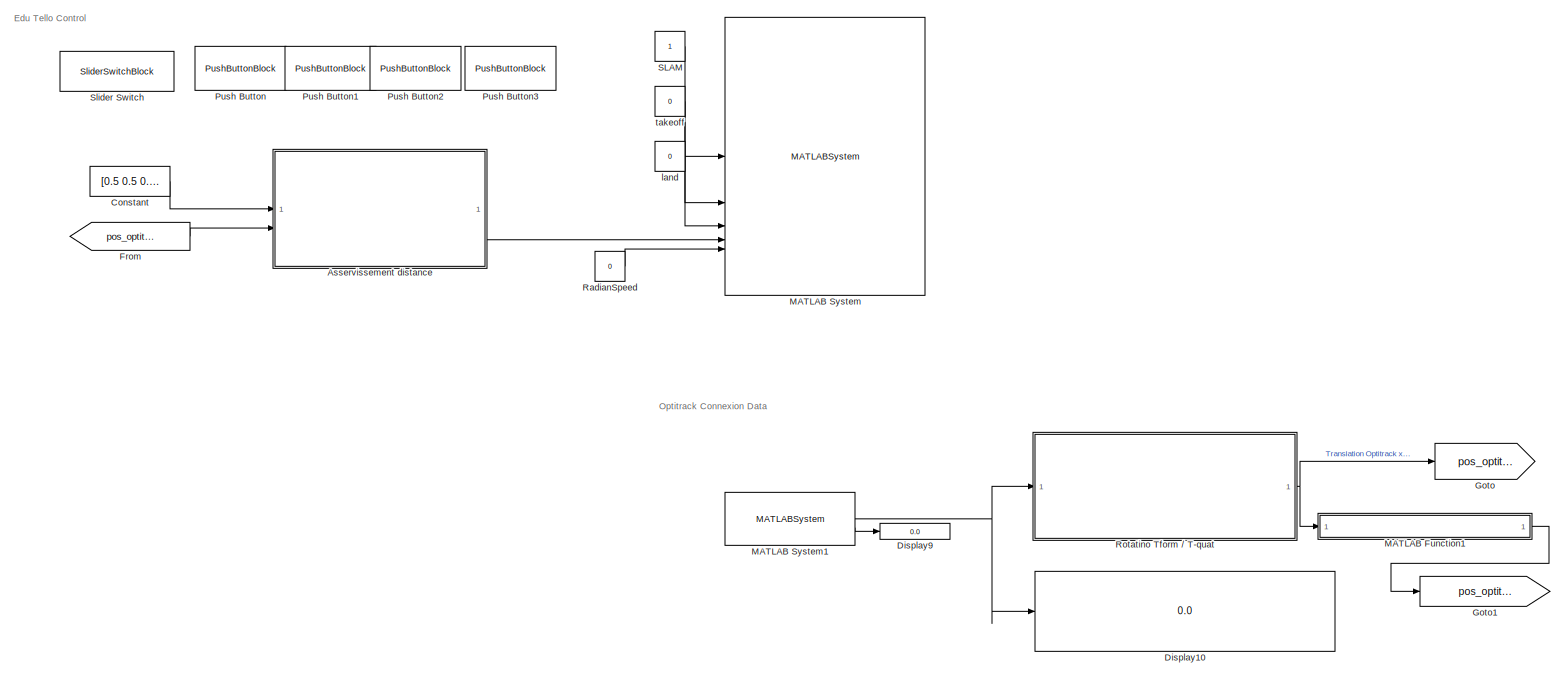
[diagram: root canvas - part 1/1, most of the canvas]
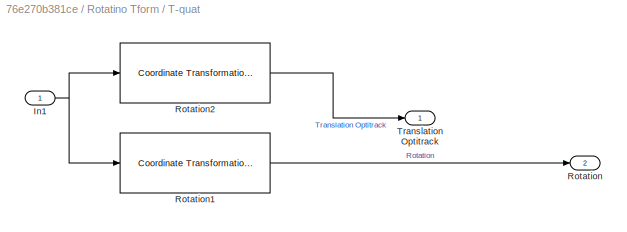
MODEL slx_76e270b381ce
KIND model
CONFIG AbsTol = auto
CONFIG EnableMultiTasking = off
CONFIG FixedStep = auto
CONFIG MaxStep = auto
CONFIG MinStep = auto
CONFIG RelTol = 1e-3
CONFIG SampleTimeConstraint = Unconstrained
CONFIG SolverName = VariableStepAuto
CONFIG StartTime = 0.0
CONFIG StopTime = 10.0
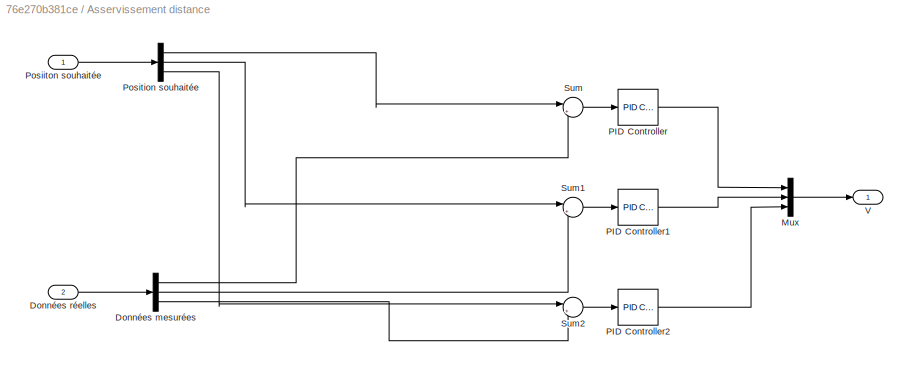
BLOCK [SubSystem] Asservissement distance
BLOCK [Demux] Asservissement distance/Données mesurées
  Outputs = 3
BLOCK [Inport] Asservissement distance/Données réelles
  Port = 2
BLOCK [Mux] Asservissement distance/Mux
  DisplayOption = bar
  Inputs = 3
BLOCK [Reference] Asservissement distance/PID Controller  REF=slpidlib/PID Controller
  LibrarySourceBlock = simulink/Continuous/PID Controller
  SourceBlock = slpidlib/PID Controller
  SourceType = PID 1dof
BLOCK [Reference] Asservissement distance/PID Controller1  REF=slpidlib/PID Controller
  LibrarySourceBlock = simulink/Continuous/PID Controller
  SourceBlock = slpidlib/PID Controller
  SourceType = PID 1dof
BLOCK [Reference] Asservissement distance/PID Controller2  REF=slpidlib/PID Controller
  LibrarySourceBlock = simulink/Continuous/PID Controller
  SourceBlock = slpidlib/PID Controller
  SourceType = PID 1dof
BLOCK [Inport] Asservissement distance/Posiiton souhaitée 
BLOCK [Demux] Asservissement distance/Position souhaitée
  Outputs = 3
BLOCK [Sum] Asservissement distance/Sum
  Inputs = |+-
BLOCK [Sum] Asservissement distance/Sum1
  Inputs = |+-
BLOCK [Sum] Asservissement distance/Sum2
  Inputs = |+-
BLOCK [Outport] Asservissement distance/V
BLOCK [Constant] Constant
  Value = [0.5 0.5 0.5]
BLOCK [Display] Display10
  Decimation = 1
BLOCK [Display] Display9
  Decimation = 1
BLOCK [From] From
  GotoTag = pos_optitrack_ref_drone
BLOCK [Goto] Goto
  GotoTag = pos_optitrack
BLOCK [Goto] Goto1
  GotoTag = pos_optitrack_ref_drone
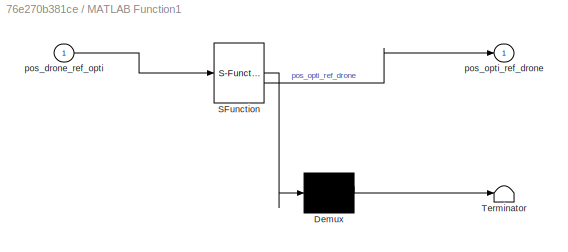
BLOCK [SubSystem] MATLAB Function1
  ErrorFcn = Stateflow.Translate.translate
  PermitHierarchicalResolution = ExplicitOnly
  SFBlockType = MATLAB Function
  TreatAsAtomicUnit = on
BLOCK [Demux] MATLAB Function1/ Demux 
  Outputs = 1
BLOCK [S-Function] MATLAB Function1/ SFunction 
  EnableBusSupport = on
  FunctionName = sf_sfun
  PortCounts = [1 2]
  SFcnIsStateOwnerBlock = off
  SFunctionDeploymentMode = off
  Tag = Stateflow S-Function 10
BLOCK [Terminator] MATLAB Function1/ Terminator 
BLOCK [Inport] MATLAB Function1/pos_drone_ref_opti
BLOCK [Outport] MATLAB Function1/pos_opti_ref_drone
BLOCK [MATLABSystem] MATLAB System
  MaskDisplay = disp('Tello_drone_control');\nport_label('input',1,'Slam');\nport_label('input',2,'tkoff');\nport_label('input',3,'landing');\nport_label('input',4,'Speed');\nport_label('input',5,'RadianSpeed');\nport_label('output',1,'image');
  MaskType = Tello_drone_control
  SimulateUsing = Code generation
  System = Tello_drone_control
  droneIP = 127.0.0.1
BLOCK [MATLABSystem] MATLAB System1
  ClientIP = 127.0.0.1
  HostIP = 127.0.0.1
  MaskDisplay = disp('OptilinkSystem');\nport_label('output',1,'Drones data');\nport_label('output',2,'Connected');
  MaskType = OptilinkSystem
  SimulateUsing = Interpreted execution
  System = OptilinkSystem
BLOCK [PushButtonBlock] Push Button
  ButtonText = Takeoff
  OffValue = -nan(ind)
BLOCK [PushButtonBlock] Push Button1
  ButtonText = Land
  OffValue = 0.000000
BLOCK [PushButtonBlock] Push Button2
  ButtonText = MoveXYZ
  OffValue = 0.000000
BLOCK [PushButtonBlock] Push Button3
  ButtonText = Moverotate
  OffValue = 0.000000
BLOCK [Constant] RadianSpeed
  Value = 0
BLOCK [SubSystem] Rotatino Tform //  T-quat
BLOCK [Inport] Rotatino Tform //  T-quat/In1
BLOCK [Outport] Rotatino Tform //  T-quat/Rotation
  Port = 2
BLOCK [Reference] Rotatino Tform //  T-quat/Rotation1  REF=robotcorelib/Coordinate Transformation Conversion
  LibrarySourceBlock = uavutilslib/Coordinate Transformation Conversion
  SourceBlock = robotcorelib/Coordinate Transformation Conversion
  SourceType = robotics.slcore.internal.block.CoordinateTransformationConversion
BLOCK [Reference] Rotatino Tform //  T-quat/Rotation2  REF=robotcorelib/Coordinate Transformation Conversion
  LibrarySourceBlock = uavutilslib/Coordinate Transformation Conversion
  SourceBlock = robotcorelib/Coordinate Transformation Conversion
  SourceType = robotics.slcore.internal.block.CoordinateTransformationConversion
BLOCK [Outport] Rotatino Tform //  T-quat/Translation Optitrack
BLOCK [Constant] SLAM
BLOCK [SliderSwitchBlock] Slider Switch
BLOCK [Constant] land
  Value = 0
BLOCK [Constant] takeoff
  Value = 0
ANNOTATION (root): Edu Tello Control
ANNOTATION (root): Optitrack Connexion Data
LINE Asservissement distance/Données mesurées:1 -> Asservissement distance/Sum:2
LINE Asservissement distance/Données mesurées:2 -> Asservissement distance/Sum1:2
LINE Asservissement distance/Données mesurées:3 -> Asservissement distance/Sum2:2
LINE Asservissement distance/Données réelles:1 -> Asservissement distance/Données mesurées:1
LINE Asservissement distance/Mux:1 -> Asservissement distance/V:1
LINE Asservissement distance/PID Controller1:1 -> Asservissement distance/Mux:2
LINE Asservissement distance/PID Controller2:1 -> Asservissement distance/Mux:3
LINE Asservissement distance/PID Controller:1 -> Asservissement distance/Mux:1
LINE Asservissement distance/Posiiton souhaitée :1 -> Asservissement distance/Position souhaitée:1
LINE Asservissement distance/Position souhaitée:1 -> Asservissement distance/Sum:1
LINE Asservissement distance/Position souhaitée:2 -> Asservissement distance/Sum1:1
LINE Asservissement distance/Position souhaitée:3 -> Asservissement distance/Sum2:1
LINE Asservissement distance/Sum1:1 -> Asservissement distance/PID Controller1:1
LINE Asservissement distance/Sum2:1 -> Asservissement distance/PID Controller2:1
LINE Asservissement distance/Sum:1 -> Asservissement distance/PID Controller:1
LINE Asservissement distance:1 -> MATLAB System:4
LINE Constant:1 -> Asservissement distance:1
LINE From:1 -> Asservissement distance:2
LINE MATLAB Function1:1 -> Goto1:1
NET MATLAB System1:1 -> Display10:1, Rotatino Tform //  T-quat:1
LINE MATLAB System1:2 -> Display9:1
LINE RadianSpeed:1 -> MATLAB System:5
NET Rotatino Tform //  T-quat/In1:1 -> Rotatino Tform //  T-quat/Rotation1:1, Rotatino Tform //  T-quat/Rotation2:1
LINE Rotatino Tform //  T-quat/Rotation1:1 -> Rotatino Tform //  T-quat/Rotation:1
LINE Rotatino Tform //  T-quat/Rotation2:1 -> Rotatino Tform //  T-quat/Translation Optitrack:1
NET Rotatino Tform //  T-quat:1 -> Goto:1, MATLAB Function1:1
LINE SLAM:1 -> MATLAB System:1
LINE land:1 -> MATLAB System:3
LINE takeoff:1 -> MATLAB System:2
note: NET lines group one-source signal fan-out (src -> all destinations, sorted); 1:1 wires keep LINE
CHART MATLAB Function1 states=1 transitions=1
  STATE_LABEL 'eML_blk_kernel()'
  STATE_LABEL 'SCRIPT:\nfunction pos_opti_ref_drone = fcn(pos_drone_ref_opti)\n\n%% Attention, le drone doit être posé à (0,0,0), la caméra vers la vitre\n% Axe X référentiel drone = Axe Z référentiel opti\n% Axe Y référentiel drone = Axe X référentiel opti \n% Axe Z référentiel drone = Axe Y référentiel opti \npos_opti_ref_drone = [(-1)*pos_drone_ref_opti(3); pos_drone_ref_drone(1); pos_drone_ref_drone(2)];\n'
CHART  states=0 transitions=0
